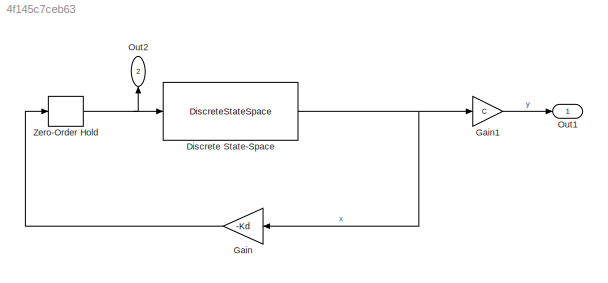
MODEL slx_4f145c7ceb63
KIND model
CONFIG AbsTol = auto
CONFIG EnableMultiTasking = off
CONFIG FixedStep = auto
CONFIG MaxStep = auto
CONFIG MinStep = auto
CONFIG RelTol = 1e-3
CONFIG SampleTimeConstraint = Unconstrained
CONFIG SolverName = VariableStepAuto
CONFIG StartTime = 0.0
CONFIG StopTime = 15
BLOCK [DiscreteStateSpace] Discrete State-Space
  A = Ad
  B = Bd
  C = eye(2)
  D = [0;0]
  InitialCondition = [T2/k2*k1; 0]
  SampleTime = -1
BLOCK [Gain] Gain
  Gain = -Kd
  Multiplication = Matrix(K*u)
  NameLocation = top
BLOCK [Gain] Gain1
  Gain = C
BLOCK [Outport] Out1
BLOCK [Outport] Out2
  NameLocation = right
  Port = 2
BLOCK [ZeroOrderHold] Zero-Order Hold
  SampleTime = T
NET Discrete State-Space:1 -> Gain1:1, Gain:1
LINE Gain1:1 -> Out1:1
LINE Gain:1 -> Zero-Order Hold:1
NET Zero-Order Hold:1 -> Discrete State-Space:1, Out2:1
note: NET lines group one-source signal fan-out (src -> all destinations, sorted); 1:1 wires keep LINE
